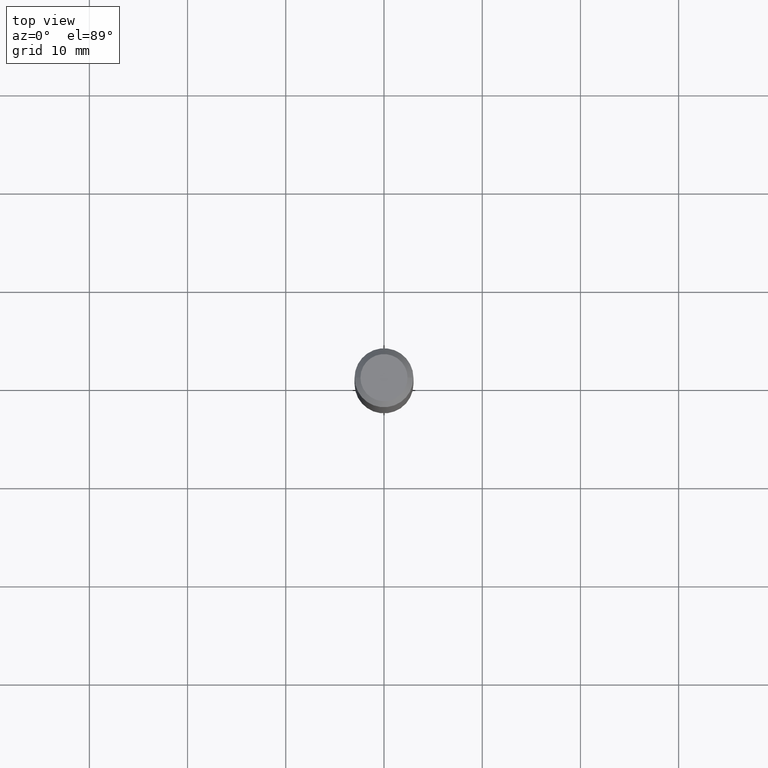
[diagram: clean part render]
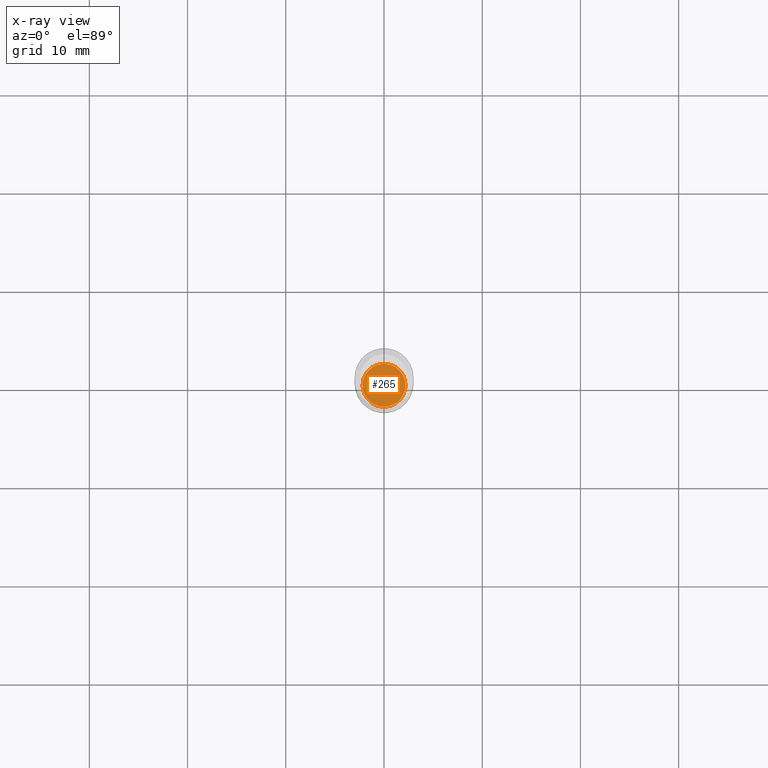
[diagram: x-ray — body ghosted, one internal face saturated and labeled with its STEP entity id]
A machine part, top view, then the same camera in x-ray: the body is ghosted and one INTERNAL B-rep face — a face not visible from any outside direction — is saturated and labeled: STEP entity #265.
In plain terms, the highlighted planar face has unit normal (-0, 0, 1).
Its self-contained STEP definition (entity closure, byte-faithful):
#22 = ORIENTED_EDGE ( 'NONE', *, *, #351, .F. ) ;
#45 = ORIENTED_EDGE ( 'NONE', *, *, #170, .F. ) ;
#47 = CARTESIAN_POINT ( 'NONE',  ( 4.331658896395732410E-29, -6.184460895492863090E-15, -1.771299999999999653 ) ) ;
#52 = AXIS2_PLACEMENT_3D ( 'NONE', #47, #77, #224 ) ;
#76 = AXIS2_PLACEMENT_3D ( 'NONE', #109, #335, #216 ) ;
#77 = DIRECTION ( 'NONE',  ( -2.445468806185136597E-29, 3.491481338843145583E-15, 1.000000000000000000 ) ) ;
#80 = DIRECTION ( 'NONE',  ( 1.000000000000000000, -6.982962677686265922E-15, 4.876176775795935793E-29 ) ) ;
#104 = VERTEX_POINT ( 'NONE', #356 ) ;
#107 = VERTEX_POINT ( 'NONE', #280 ) ;
#108 = CARTESIAN_POINT ( 'NONE',  ( 4.331658896395732410E-29, -6.184460895492863090E-15, -1.771299999999999653 ) ) ;
#109 = CARTESIAN_POINT ( 'NONE',  ( 4.331658896395732410E-29, -6.184460895492863090E-15, -1.771299999999999653 ) ) ;
#141 = EDGE_LOOP ( 'NONE', ( #45, #22 ) ) ;
#170 = EDGE_CURVE ( 'NONE', #107, #104, #447, .T. ) ;
#181 = AXIS2_PLACEMENT_3D ( 'NONE', #108, #281, #80 ) ;
#216 = DIRECTION ( 'NONE',  ( 1.000000000000000000, -6.982962677686264344E-15, 0.000000000000000000 ) ) ;
#224 = DIRECTION ( 'NONE',  ( 1.000000000000000000, -6.982962677686264344E-15, 0.000000000000000000 ) ) ;
#265 = ADVANCED_FACE ( 'NONE', ( #311 ), #458, .F. ) ;
#280 = CARTESIAN_POINT ( 'NONE',  ( 0.08609999999999996823, -6.785693982041650218E-15, -1.771299999999999653 ) ) ;
#281 = DIRECTION ( 'NONE',  ( -2.438088387897960049E-29, 3.491481338843145188E-15, 1.000000000000000000 ) ) ;
#311 = FACE_OUTER_BOUND ( 'NONE', #141, .T. ) ;
#335 = DIRECTION ( 'NONE',  ( -2.445468806185136597E-29, 3.491481338843145583E-15, 1.000000000000000000 ) ) ;
#351 = EDGE_CURVE ( 'NONE', #104, #107, #419, .T. ) ;
#356 = CARTESIAN_POINT ( 'NONE',  ( -0.08609999999999996823, -5.570034372829306742E-15, -1.771299999999999653 ) ) ;
#419 = CIRCLE ( 'NONE', #76, 0.08609999999999996823 ) ;
#447 = CIRCLE ( 'NONE', #52, 0.08609999999999996823 ) ;
#458 = PLANE ( 'NONE',  #181 ) ;